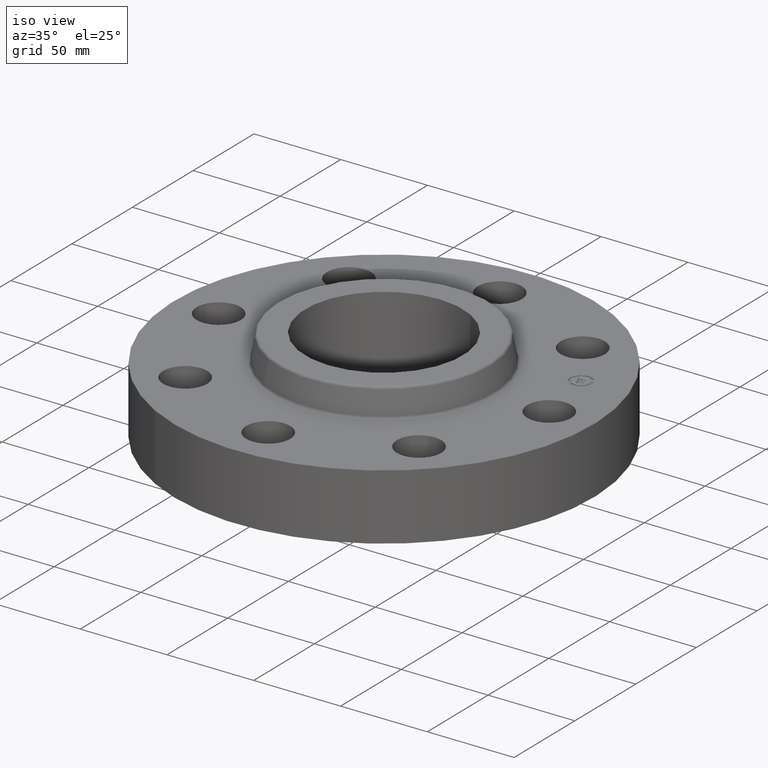
[diagram: clean part render]
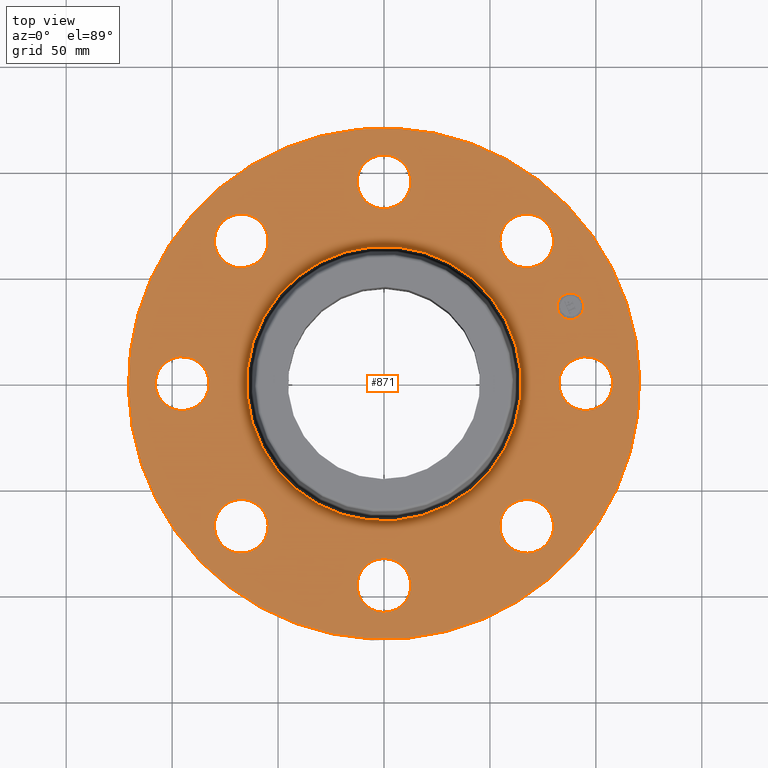
[diagram: tour spotlight — one face highlighted and labeled with its STEP entity id]
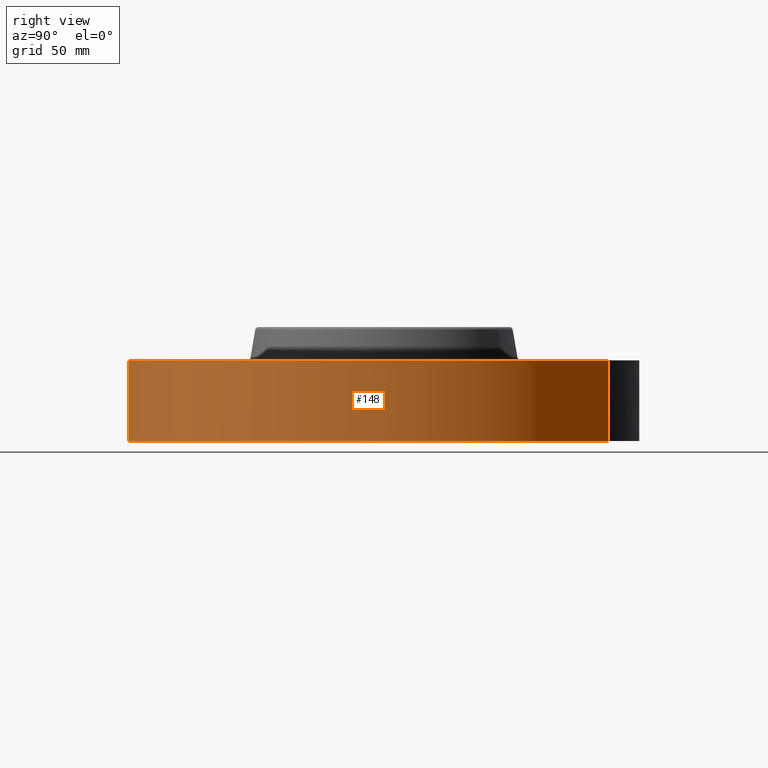
[diagram: tour spotlight — one face highlighted and labeled with its STEP entity id]
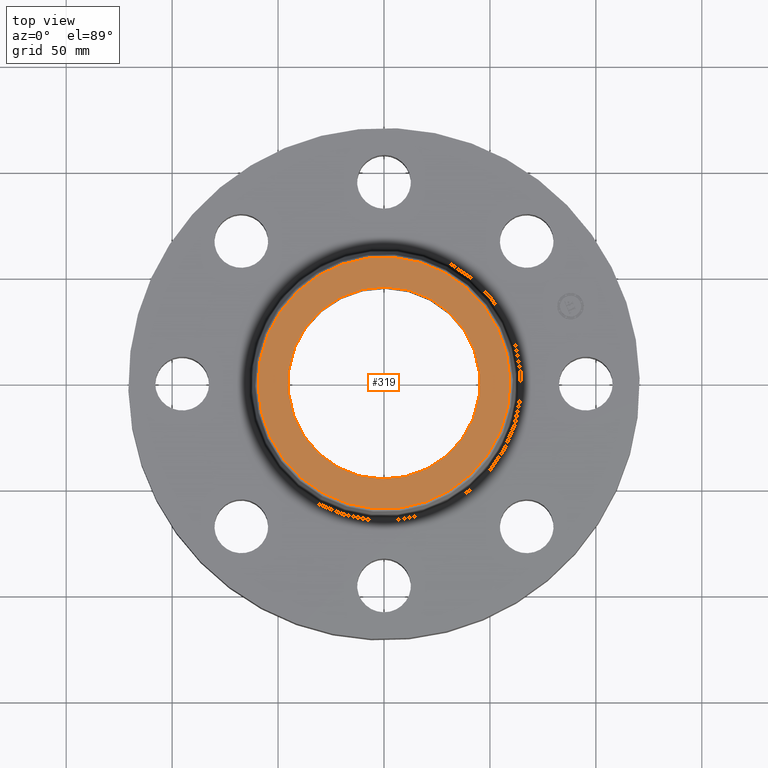
[diagram: tour spotlight — one face highlighted and labeled with its STEP entity id]
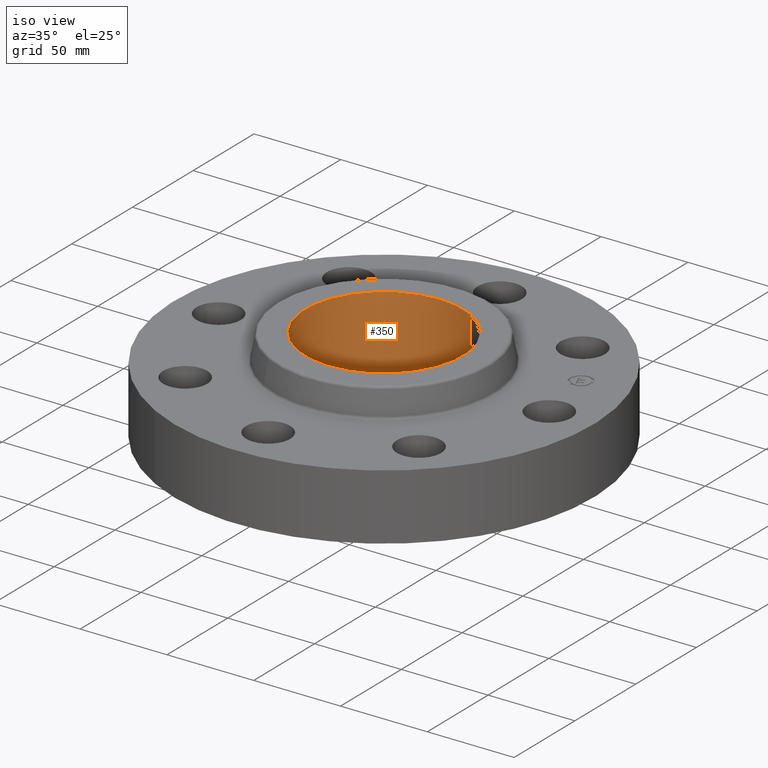
[diagram: tour spotlight — one face highlighted and labeled with its STEP entity id]
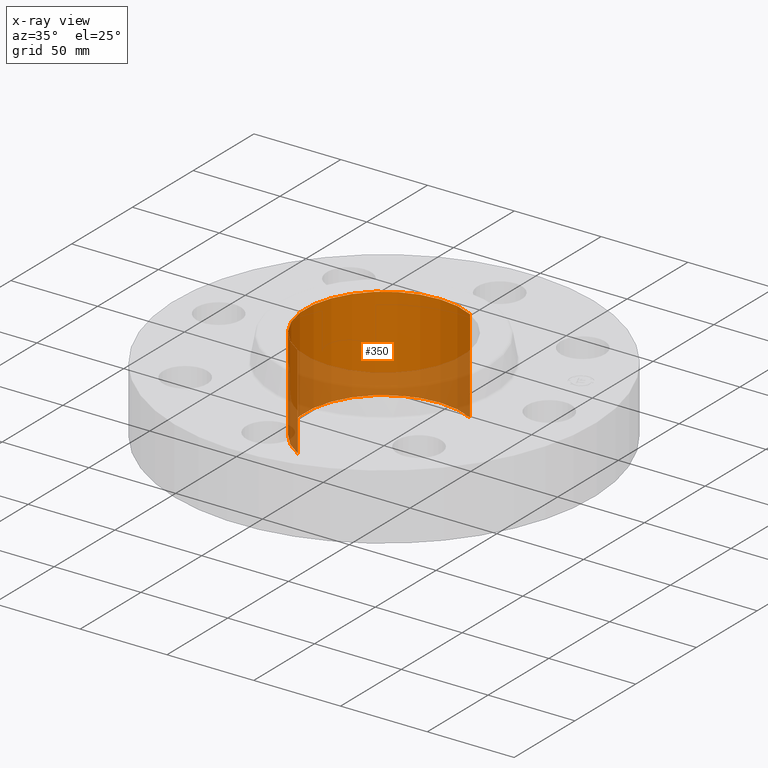
[diagram: x-ray of the same camera — body ghosted, this tour face saturated]
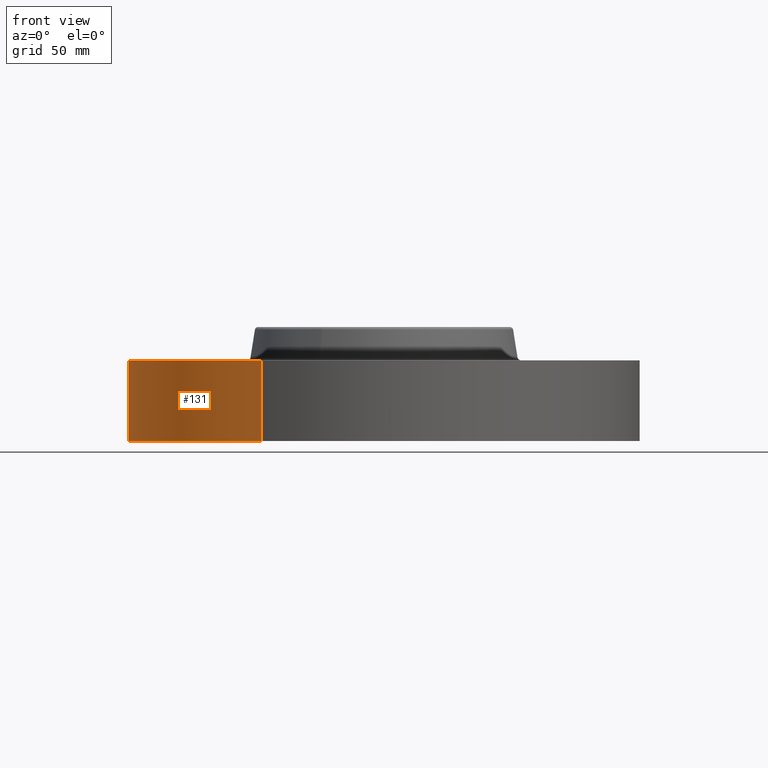
[diagram: tour spotlight — one face highlighted and labeled with its STEP entity id]
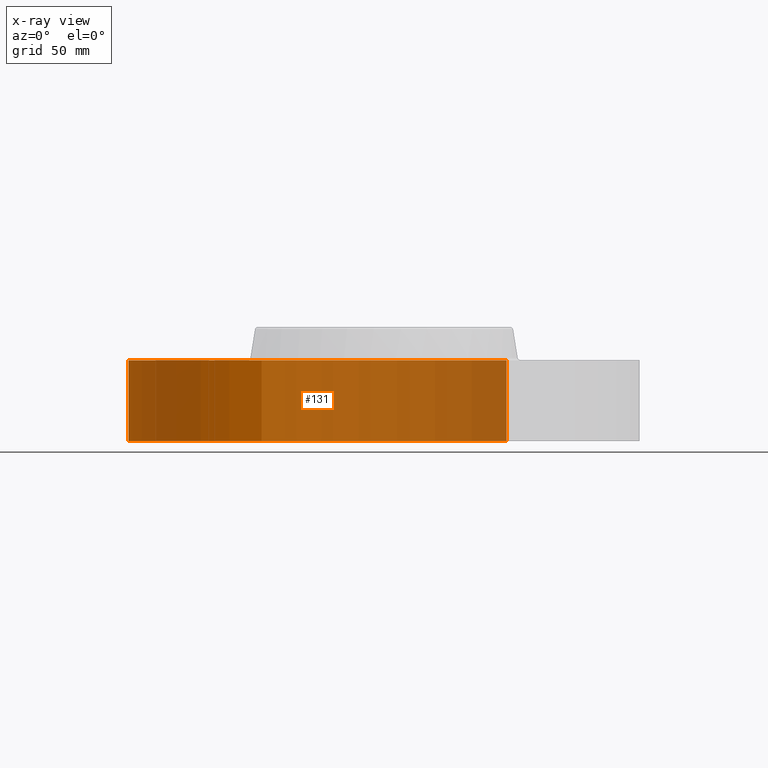
[diagram: x-ray of the same camera — body ghosted, this tour face saturated]
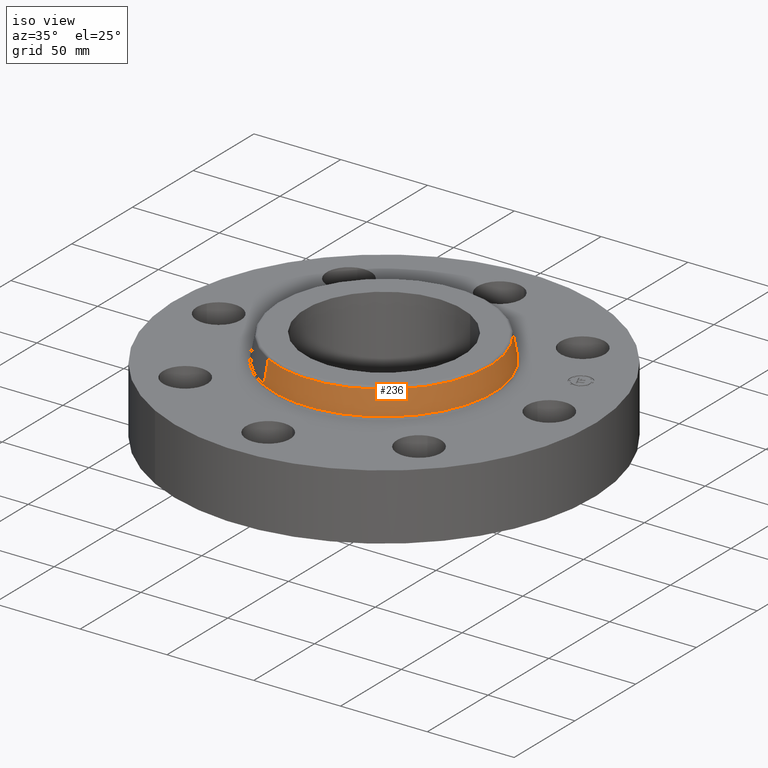
[diagram: tour spotlight — one face highlighted and labeled with its STEP entity id]
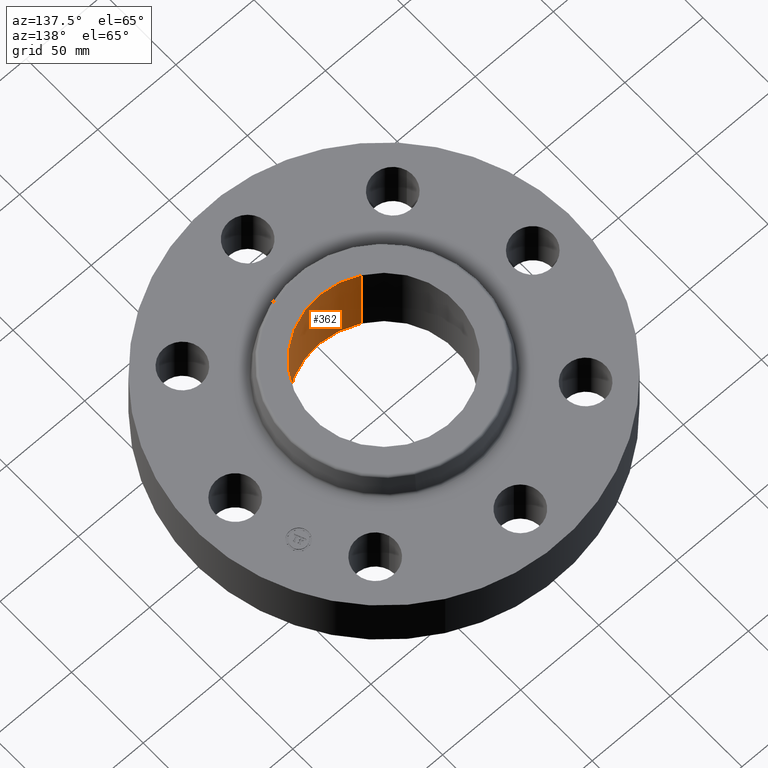
[diagram: tour spotlight — one face highlighted and labeled with its STEP entity id]
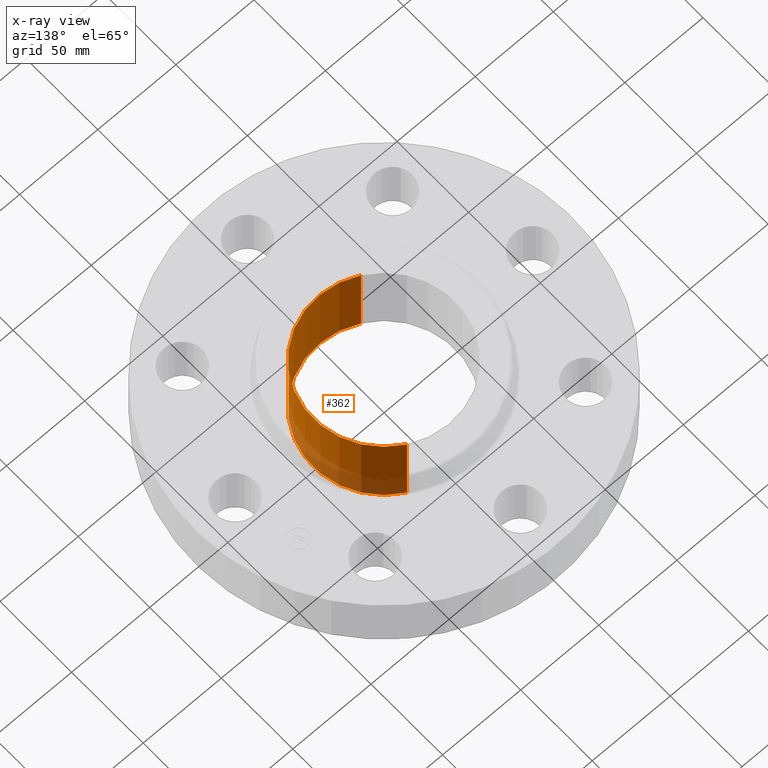
[diagram: x-ray of the same camera — body ghosted, this tour face saturated]
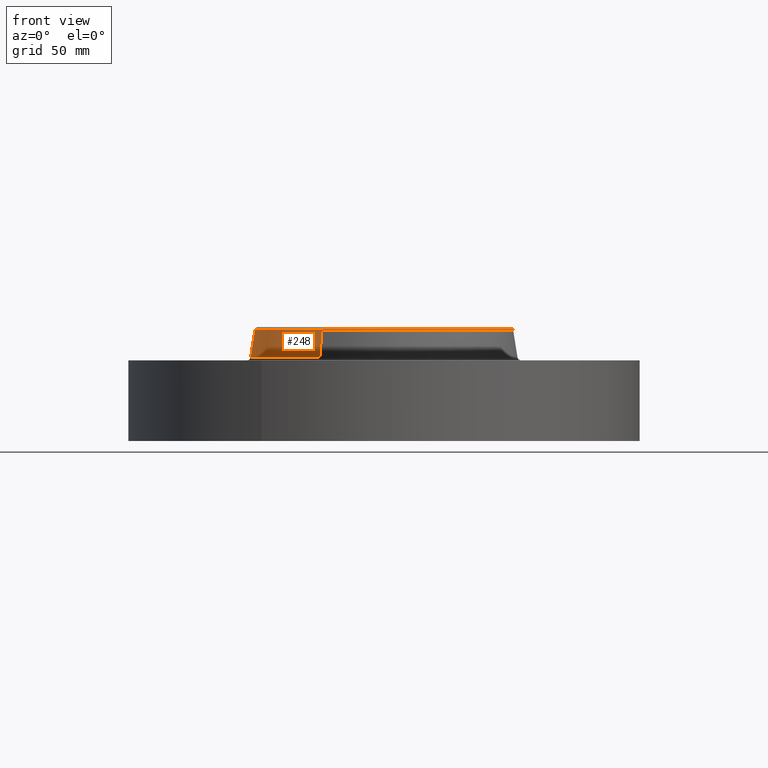
[diagram: tour spotlight — one face highlighted and labeled with its STEP entity id]
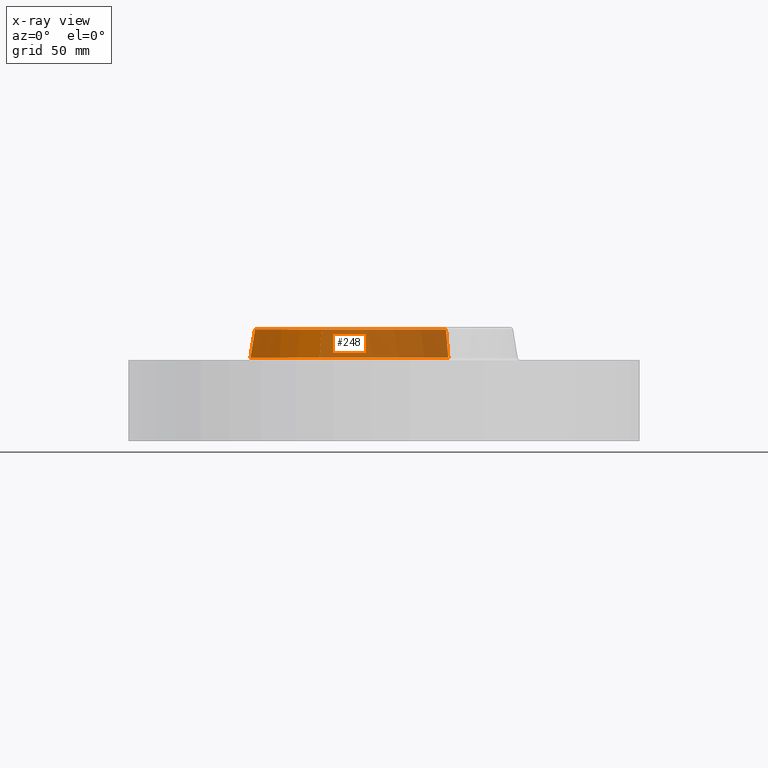
[diagram: x-ray of the same camera — body ghosted, this tour face saturated]
A machine part: a face-by-face anatomy tour. The part has 414 B-rep faces; the first image is the clean iso view, then the 8 largest visible faces are spotlighted one at a time (largest first), each with its STEP entity span.

Face 1 — top view, entity #871. In plain terms, the highlighted planar face has unit normal (0, 0, -1).
Definition (entity closure, byte-faithful):
#65=AXIS2_PLACEMENT_3D('Circle Axis2P3D',#63,#64,$) ;
#82=AXIS2_PLACEMENT_3D('Circle Axis2P3D',#80,#81,$) ;
#115=AXIS2_PLACEMENT_3D('Circle Axis2P3D',#113,#114,$) ;
#139=AXIS2_PLACEMENT_3D('Circle Axis2P3D',#137,#138,$) ;
#156=AXIS2_PLACEMENT_3D('Circle Axis2P3D',#154,#155,$) ;
#191=AXIS2_PLACEMENT_3D('Circle Axis2P3D',#189,#190,$) ;
#528=AXIS2_PLACEMENT_3D('Circle Axis2P3D',#526,#527,$) ;
#540=AXIS2_PLACEMENT_3D('Circle Axis2P3D',#538,#539,$) ;
#571=AXIS2_PLACEMENT_3D('Circle Axis2P3D',#569,#570,$) ;
#583=AXIS2_PLACEMENT_3D('Circle Axis2P3D',#581,#582,$) ;
#614=AXIS2_PLACEMENT_3D('Circle Axis2P3D',#612,#613,$) ;
#626=AXIS2_PLACEMENT_3D('Circle Axis2P3D',#624,#625,$) ;
#657=AXIS2_PLACEMENT_3D('Circle Axis2P3D',#655,#656,$) ;
#669=AXIS2_PLACEMENT_3D('Circle Axis2P3D',#667,#668,$) ;
#700=AXIS2_PLACEMENT_3D('Circle Axis2P3D',#698,#699,$) ;
#712=AXIS2_PLACEMENT_3D('Circle Axis2P3D',#710,#711,$) ;
#743=AXIS2_PLACEMENT_3D('Circle Axis2P3D',#741,#742,$) ;
#755=AXIS2_PLACEMENT_3D('Circle Axis2P3D',#753,#754,$) ;
#786=AXIS2_PLACEMENT_3D('Circle Axis2P3D',#784,#785,$) ;
#798=AXIS2_PLACEMENT_3D('Circle Axis2P3D',#796,#797,$) ;
#811=AXIS2_PLACEMENT_3D('Plane Axis2P3D',#808,#809,#810) ;
#855=AXIS2_PLACEMENT_3D('Circle Axis2P3D',#853,#854,$) ;
#864=AXIS2_PLACEMENT_3D('Circle Axis2P3D',#862,#863,$) ;
#46=CARTESIAN_POINT('Vertex',(3.31120871907,0.239712769303,1.50000000001)) ;
#60=CARTESIAN_POINT('Vertex',(4.18879128096,-0.239712769303,1.50000000001)) ;
#63=CARTESIAN_POINT('Axis2P3D Location',(3.75000000002,0.,1.50000000001)) ;
#80=CARTESIAN_POINT('Axis2P3D Location',(3.75000000002,0.,1.50000000001)) ;
#110=CARTESIAN_POINT('Vertex',(-2.27727130838,-4.168517169,1.50000000001)) ;
#113=CARTESIAN_POINT('Axis2P3D Location',(0.,0.,1.50000000001)) ;
#117=CARTESIAN_POINT('Vertex',(2.27727130838,4.168517169,1.50000000001)) ;
#137=CARTESIAN_POINT('Axis2P3D Location',(0.,0.,1.50000000001)) ;
#154=CARTESIAN_POINT('Axis2P3D Location',(0.,0.,1.50000000001)) ;
#158=CARTESIAN_POINT('Vertex',(1.22270099407,2.23813915698,1.50000000001)) ;
#160=CARTESIAN_POINT('Vertex',(-1.22270099407,-2.23813915698,1.50000000001)) ;
#189=CARTESIAN_POINT('Axis2P3D Location',(0.,0.,1.50000000001)) ;
#516=CARTESIAN_POINT('Vertex',(-2.51088066389,2.17187561447,1.50000000001)) ;
#523=CARTESIAN_POINT('Vertex',(-2.79242019503,3.13142524445,1.50000000001)) ;
#526=CARTESIAN_POINT('Axis2P3D Location',(-2.65165042946,2.65165042946,1.50000000001)) ;
#538=CARTESIAN_POINT('Axis2P3D Location',(-2.65165042946,2.65165042946,1.50000000001)) ;
#559=CARTESIAN_POINT('Vertex',(0.239712769303,-3.31120871907,1.50000000001)) ;
#566=CARTESIAN_POINT('Vertex',(-0.239712769303,-4.18879128096,1.50000000001)) ;
#569=CARTESIAN_POINT('Axis2P3D Location',(-3.29861194261E-016,-3.75000000002,1.50000000001)) ;
#581=CARTESIAN_POINT('Axis2P3D Location',(-3.29861194261E-016,-3.75000000002,1.50000000001)) ;
#602=CARTESIAN_POINT('Vertex',(-0.239712769303,3.31120871907,1.50000000001)) ;
#609=CARTESIAN_POINT('Vertex',(0.239712769303,4.18879128096,1.50000000001)) ;
#612=CARTESIAN_POINT('Axis2P3D Location',(-6.88863824523E-016,3.75000000002,1.50000000001)) ;
#624=CARTESIAN_POINT('Axis2P3D Location',(-6.88863824523E-016,3.75000000002,1.50000000001)) ;
#645=CARTESIAN_POINT('Vertex',(-2.17187561447,-2.51088066389,1.50000000001)) ;
#652=CARTESIAN_POINT('Vertex',(-3.13142524445,-2.79242019503,1.50000000001)) ;
#655=CARTESIAN_POINT('Axis2P3D Location',(-2.65165042946,-2.65165042946,1.50000000001)) ;
#667=CARTESIAN_POINT('Axis2P3D Location',(-2.65165042946,-2.65165042946,1.50000000001)) ;
#688=CARTESIAN_POINT('Vertex',(2.17187561447,2.51088066389,1.50000000001)) ;
#695=CARTESIAN_POINT('Vertex',(3.13142524445,2.79242019503,1.50000000001)) ;
#698=CARTESIAN_POINT('Axis2P3D Location',(2.65165042946,2.65165042946,1.50000000001)) ;
#710=CARTESIAN_POINT('Axis2P3D Location',(2.65165042946,2.65165042946,1.50000000001)) ;
#731=CARTESIAN_POINT('Vertex',(-3.31120871907,-0.239712769303,1.50000000001)) ;
#738=CARTESIAN_POINT('Vertex',(-4.18879128096,0.239712769303,1.50000000001)) ;
#741=CARTESIAN_POINT('Axis2P3D Location',(-3.75000000002,-4.59242549682E-016,1.50000000001)) ;
#753=CARTESIAN_POINT('Axis2P3D Location',(-3.75000000002,-4.59242549682E-016,1.50000000001)) ;
#774=CARTESIAN_POINT('Vertex',(2.51088066389,-2.17187561447,1.50000000001)) ;
#781=CARTESIAN_POINT('Vertex',(2.79242019503,-3.13142524445,1.50000000001)) ;
#784=CARTESIAN_POINT('Axis2P3D Location',(2.65165042946,-2.65165042946,1.50000000001)) ;
#796=CARTESIAN_POINT('Axis2P3D Location',(2.65165042946,-2.65165042946,1.50000000001)) ;
#808=CARTESIAN_POINT('Axis2P3D Location',(0.,4.75000000002,1.50000000001)) ;
#853=CARTESIAN_POINT('Axis2P3D Location',(3.46454824693,1.43506287137,1.50000000001)) ;
#857=CARTESIAN_POINT('Vertex',(3.36983409742,1.66372305567,1.50000000001)) ;
#859=CARTESIAN_POINT('Vertex',(3.55926239644,1.20640268708,1.50000000001)) ;
#862=CARTESIAN_POINT('Axis2P3D Location',(3.46454824693,1.43506287137,1.50000000001)) ;
#64=DIRECTION('Axis2P3D Direction',(0.,-0.,-0.0393700787402)) ;
#81=DIRECTION('Axis2P3D Direction',(0.,-0.,-0.0393700787402)) ;
#114=DIRECTION('Axis2P3D Direction',(0.,0.,-0.0393700787402)) ;
#138=DIRECTION('Axis2P3D Direction',(0.,0.,-0.0393700787402)) ;
#155=DIRECTION('Axis2P3D Direction',(0.,0.,-0.0393700787402)) ;
#190=DIRECTION('Axis2P3D Direction',(0.,0.,-0.0393700787402)) ;
#527=DIRECTION('Axis2P3D Direction',(0.,0.,-0.0393700787402)) ;
#539=DIRECTION('Axis2P3D Direction',(0.,0.,-0.0393700787402)) ;
#570=DIRECTION('Axis2P3D Direction',(0.,-0.,-0.0393700787402)) ;
#582=DIRECTION('Axis2P3D Direction',(0.,-0.,-0.0393700787402)) ;
#613=DIRECTION('Axis2P3D Direction',(0.,0.,-0.0393700787402)) ;
#625=DIRECTION('Axis2P3D Direction',(0.,0.,-0.0393700787402)) ;
#656=DIRECTION('Axis2P3D Direction',(-0.,0.,-0.0393700787402)) ;
#668=DIRECTION('Axis2P3D Direction',(-0.,0.,-0.0393700787402)) ;
#699=DIRECTION('Axis2P3D Direction',(0.,0.,-0.0393700787402)) ;
#711=DIRECTION('Axis2P3D Direction',(0.,0.,-0.0393700787402)) ;
#742=DIRECTION('Axis2P3D Direction',(-0.,0.,-0.0393700787402)) ;
#754=DIRECTION('Axis2P3D Direction',(-0.,0.,-0.0393700787402)) ;
#785=DIRECTION('Axis2P3D Direction',(0.,-0.,-0.0393700787402)) ;
#797=DIRECTION('Axis2P3D Direction',(0.,-0.,-0.0393700787402)) ;
#809=DIRECTION('Axis2P3D Direction',(0.,0.,-0.0393700787402)) ;
#810=DIRECTION('Axis2P3D XDirection',(0.0393700787402,0.,0.)) ;
#854=DIRECTION('Axis2P3D Direction',(0.,0.,-0.0393700787402)) ;
#863=DIRECTION('Axis2P3D Direction',(0.,0.,-0.0393700787402)) ;
#814=ORIENTED_EDGE('',*,*,#141,.F.) ;
#815=ORIENTED_EDGE('',*,*,#119,.F.) ;
#818=ORIENTED_EDGE('',*,*,#67,.T.) ;
#819=ORIENTED_EDGE('',*,*,#84,.T.) ;
#822=ORIENTED_EDGE('',*,*,#193,.T.) ;
#823=ORIENTED_EDGE('',*,*,#162,.T.) ;
#826=ORIENTED_EDGE('',*,*,#800,.T.) ;
#827=ORIENTED_EDGE('',*,*,#788,.T.) ;
#830=ORIENTED_EDGE('',*,*,#585,.T.) ;
#831=ORIENTED_EDGE('',*,*,#573,.T.) ;
#834=ORIENTED_EDGE('',*,*,#671,.T.) ;
#835=ORIENTED_EDGE('',*,*,#659,.T.) ;
#838=ORIENTED_EDGE('',*,*,#757,.T.) ;
#839=ORIENTED_EDGE('',*,*,#745,.T.) ;
#842=ORIENTED_EDGE('',*,*,#542,.T.) ;
#843=ORIENTED_EDGE('',*,*,#530,.T.) ;
#846=ORIENTED_EDGE('',*,*,#628,.T.) ;
#847=ORIENTED_EDGE('',*,*,#616,.T.) ;
#850=ORIENTED_EDGE('',*,*,#714,.T.) ;
#851=ORIENTED_EDGE('',*,*,#702,.T.) ;
#868=ORIENTED_EDGE('',*,*,#861,.T.) ;
#869=ORIENTED_EDGE('',*,*,#866,.T.) ;
#820=FACE_BOUND('',#817,.T.) ;
#824=FACE_BOUND('',#821,.T.) ;
#828=FACE_BOUND('',#825,.T.) ;
#832=FACE_BOUND('',#829,.T.) ;
#836=FACE_BOUND('',#833,.T.) ;
#840=FACE_BOUND('',#837,.T.) ;
#844=FACE_BOUND('',#841,.T.) ;
#848=FACE_BOUND('',#845,.T.) ;
#852=FACE_BOUND('',#849,.T.) ;
#870=FACE_BOUND('',#867,.T.) ;
#871=ADVANCED_FACE('PartBody',(#816,#820,#824,#828,#832,#836,#840,#844,#848,#852,#870),#812,.F.) ;
#66=CIRCLE('generated circle',#65,0.500000000002) ;
#83=CIRCLE('generated circle',#82,0.500000000002) ;
#116=CIRCLE('generated circle',#115,4.75000000002) ;
#140=CIRCLE('generated circle',#139,4.75000000002) ;
#157=CIRCLE('generated circle',#156,2.55034597788) ;
#192=CIRCLE('generated circle',#191,2.55034597788) ;
#529=CIRCLE('generated circle',#528,0.500000000002) ;
#541=CIRCLE('generated circle',#540,0.500000000002) ;
#572=CIRCLE('generated circle',#571,0.500000000002) ;
#584=CIRCLE('generated circle',#583,0.500000000002) ;
#615=CIRCLE('generated circle',#614,0.500000000002) ;
#627=CIRCLE('generated circle',#626,0.500000000002) ;
#658=CIRCLE('generated circle',#657,0.500000000002) ;
#670=CIRCLE('generated circle',#669,0.500000000002) ;
#701=CIRCLE('generated circle',#700,0.500000000002) ;
#713=CIRCLE('generated circle',#712,0.500000000002) ;
#744=CIRCLE('generated circle',#743,0.500000000002) ;
#756=CIRCLE('generated circle',#755,0.500000000002) ;
#787=CIRCLE('generated circle',#786,0.500000000002) ;
#799=CIRCLE('generated circle',#798,0.500000000002) ;
#856=CIRCLE('generated circle',#855,0.247500000001) ;
#865=CIRCLE('generated circle',#864,0.247500000001) ;
#67=EDGE_CURVE('',#47,#61,#66,.T.) ;
#84=EDGE_CURVE('',#61,#47,#83,.T.) ;
#119=EDGE_CURVE('',#111,#118,#116,.T.) ;
#141=EDGE_CURVE('',#118,#111,#140,.T.) ;
#162=EDGE_CURVE('',#159,#161,#157,.T.) ;
#193=EDGE_CURVE('',#161,#159,#192,.T.) ;
#530=EDGE_CURVE('',#517,#524,#529,.T.) ;
#542=EDGE_CURVE('',#524,#517,#541,.T.) ;
#573=EDGE_CURVE('',#560,#567,#572,.T.) ;
#585=EDGE_CURVE('',#567,#560,#584,.T.) ;
#616=EDGE_CURVE('',#603,#610,#615,.T.) ;
#628=EDGE_CURVE('',#610,#603,#627,.T.) ;
#659=EDGE_CURVE('',#646,#653,#658,.T.) ;
#671=EDGE_CURVE('',#653,#646,#670,.T.) ;
#702=EDGE_CURVE('',#689,#696,#701,.T.) ;
#714=EDGE_CURVE('',#696,#689,#713,.T.) ;
#745=EDGE_CURVE('',#732,#739,#744,.T.) ;
#757=EDGE_CURVE('',#739,#732,#756,.T.) ;
#788=EDGE_CURVE('',#775,#782,#787,.T.) ;
#800=EDGE_CURVE('',#782,#775,#799,.T.) ;
#861=EDGE_CURVE('',#858,#860,#856,.T.) ;
#866=EDGE_CURVE('',#860,#858,#865,.T.) ;
#813=EDGE_LOOP('',(#814,#815)) ;
#817=EDGE_LOOP('',(#818,#819)) ;
#821=EDGE_LOOP('',(#822,#823)) ;
#825=EDGE_LOOP('',(#826,#827)) ;
#829=EDGE_LOOP('',(#830,#831)) ;
#833=EDGE_LOOP('',(#834,#835)) ;
#837=EDGE_LOOP('',(#838,#839)) ;
#841=EDGE_LOOP('',(#842,#843)) ;
#845=EDGE_LOOP('',(#846,#847)) ;
#849=EDGE_LOOP('',(#850,#851)) ;
#867=EDGE_LOOP('',(#868,#869)) ;
#816=FACE_OUTER_BOUND('',#813,.T.) ;
#812=PLANE('',#811) ;
#47=VERTEX_POINT('',#46) ;
#61=VERTEX_POINT('',#60) ;
#111=VERTEX_POINT('',#110) ;
#118=VERTEX_POINT('',#117) ;
#159=VERTEX_POINT('',#158) ;
#161=VERTEX_POINT('',#160) ;
#517=VERTEX_POINT('',#516) ;
#524=VERTEX_POINT('',#523) ;
#560=VERTEX_POINT('',#559) ;
#567=VERTEX_POINT('',#566) ;
#603=VERTEX_POINT('',#602) ;
#610=VERTEX_POINT('',#609) ;
#646=VERTEX_POINT('',#645) ;
#653=VERTEX_POINT('',#652) ;
#689=VERTEX_POINT('',#688) ;
#696=VERTEX_POINT('',#695) ;
#732=VERTEX_POINT('',#731) ;
#739=VERTEX_POINT('',#738) ;
#775=VERTEX_POINT('',#774) ;
#782=VERTEX_POINT('',#781) ;
#858=VERTEX_POINT('',#857) ;
#860=VERTEX_POINT('',#859) ;

Face 2 — right view, entity #148. In plain terms, the highlighted cylindrical surface (partial cylindrical patch) has radius 120.65 mm, axis along (0, 0, -1).
Definition (entity closure, byte-faithful):
#95=AXIS2_PLACEMENT_3D('Cylinder Axis2P3D',#92,#93,#94) ;
#134=AXIS2_PLACEMENT_3D('Circle Axis2P3D',#132,#133,$) ;
#139=AXIS2_PLACEMENT_3D('Circle Axis2P3D',#137,#138,$) ;
#92=CARTESIAN_POINT('Axis2P3D Location',(0.,0.,1.06)) ;
#101=CARTESIAN_POINT('Vertex',(-2.27727130838,-4.168517169,4.19611851827E-016)) ;
#103=CARTESIAN_POINT('Vertex',(2.27727130838,4.168517169,4.19611851827E-016)) ;
#106=CARTESIAN_POINT('Line Origine',(-2.27727130838,-4.168517169,0.750000000003)) ;
#110=CARTESIAN_POINT('Vertex',(-2.27727130838,-4.168517169,1.50000000001)) ;
#117=CARTESIAN_POINT('Vertex',(2.27727130838,4.168517169,1.50000000001)) ;
#120=CARTESIAN_POINT('Line Origine',(2.27727130838,4.168517169,0.750000000003)) ;
#132=CARTESIAN_POINT('Axis2P3D Location',(0.,0.,5.59482469102E-016)) ;
#137=CARTESIAN_POINT('Axis2P3D Location',(0.,0.,1.50000000001)) ;
#93=DIRECTION('Axis2P3D Direction',(0.,0.,-0.0393700787402)) ;
#94=DIRECTION('Axis2P3D XDirection',(0.0188750212049,0.0345504945626,0.)) ;
#107=DIRECTION('Vector Direction',(0.,0.,-0.0393700787402)) ;
#121=DIRECTION('Vector Direction',(0.,0.,-0.0393700787402)) ;
#133=DIRECTION('Axis2P3D Direction',(0.,0.,-0.0393700787402)) ;
#138=DIRECTION('Axis2P3D Direction',(0.,0.,-0.0393700787402)) ;
#108=VECTOR('Line Direction',#107,0.0393700787402) ;
#122=VECTOR('Line Direction',#121,0.0393700787402) ;
#143=ORIENTED_EDGE('',*,*,#136,.F.) ;
#144=ORIENTED_EDGE('',*,*,#124,.T.) ;
#145=ORIENTED_EDGE('',*,*,#141,.T.) ;
#146=ORIENTED_EDGE('',*,*,#112,.F.) ;
#148=ADVANCED_FACE('PartBody',(#147),#96,.T.) ;
#135=CIRCLE('generated circle',#134,4.75000000002) ;
#140=CIRCLE('generated circle',#139,4.75000000002) ;
#96=CYLINDRICAL_SURFACE('generated cylinder',#95,4.75000000002) ;
#112=EDGE_CURVE('',#102,#111,#109,.F.) ;
#124=EDGE_CURVE('',#104,#118,#123,.F.) ;
#136=EDGE_CURVE('',#104,#102,#135,.T.) ;
#141=EDGE_CURVE('',#118,#111,#140,.T.) ;
#142=EDGE_LOOP('',(#143,#144,#145,#146)) ;
#147=FACE_OUTER_BOUND('',#142,.T.) ;
#109=LINE('Line',#106,#108) ;
#123=LINE('Line',#120,#122) ;
#102=VERTEX_POINT('',#101) ;
#104=VERTEX_POINT('',#103) ;
#111=VERTEX_POINT('',#110) ;
#118=VERTEX_POINT('',#117) ;

Face 3 — top view, entity #319. In plain terms, the highlighted planar face has unit normal (0, 0, -1).
Definition (entity closure, byte-faithful):
#263=AXIS2_PLACEMENT_3D('Circle Axis2P3D',#261,#262,$) ;
#282=AXIS2_PLACEMENT_3D('Circle Axis2P3D',#280,#281,$) ;
#295=AXIS2_PLACEMENT_3D('Plane Axis2P3D',#292,#293,#294) ;
#303=AXIS2_PLACEMENT_3D('Circle Axis2P3D',#301,#302,$) ;
#312=AXIS2_PLACEMENT_3D('Circle Axis2P3D',#310,#311,$) ;
#258=CARTESIAN_POINT('Vertex',(1.12201459119,2.05383393275,2.12000000001)) ;
#261=CARTESIAN_POINT('Axis2P3D Location',(0.,0.,2.12000000001)) ;
#265=CARTESIAN_POINT('Vertex',(-1.12201459119,-2.05383393275,2.12000000001)) ;
#280=CARTESIAN_POINT('Axis2P3D Location',(0.,0.,2.12000000001)) ;
#292=CARTESIAN_POINT('Axis2P3D Location',(0.,2.3403312941,2.12000000001)) ;
#301=CARTESIAN_POINT('Axis2P3D Location',(0.,0.,2.12000000001)) ;
#305=CARTESIAN_POINT('Vertex',(-0.855774586412,-1.56648487298,2.12000000001)) ;
#307=CARTESIAN_POINT('Vertex',(0.855774586412,1.56648487298,2.12000000001)) ;
#310=CARTESIAN_POINT('Axis2P3D Location',(0.,0.,2.12000000001)) ;
#262=DIRECTION('Axis2P3D Direction',(0.,0.,-0.0393700787402)) ;
#281=DIRECTION('Axis2P3D Direction',(0.,0.,-0.0393700787402)) ;
#293=DIRECTION('Axis2P3D Direction',(0.,0.,-0.0393700787402)) ;
#294=DIRECTION('Axis2P3D XDirection',(0.0393700787402,0.,0.)) ;
#302=DIRECTION('Axis2P3D Direction',(0.,0.,-0.0393700787402)) ;
#311=DIRECTION('Axis2P3D Direction',(0.,0.,-0.0393700787402)) ;
#298=ORIENTED_EDGE('',*,*,#267,.F.) ;
#299=ORIENTED_EDGE('',*,*,#284,.F.) ;
#316=ORIENTED_EDGE('',*,*,#309,.T.) ;
#317=ORIENTED_EDGE('',*,*,#314,.T.) ;
#318=FACE_BOUND('',#315,.T.) ;
#319=ADVANCED_FACE('PartBody',(#300,#318),#296,.F.) ;
#264=CIRCLE('generated circle',#263,2.3403312941) ;
#283=CIRCLE('generated circle',#282,2.3403312941) ;
#304=CIRCLE('generated circle',#303,1.78500000001) ;
#313=CIRCLE('generated circle',#312,1.78500000001) ;
#267=EDGE_CURVE('',#259,#266,#264,.T.) ;
#284=EDGE_CURVE('',#266,#259,#283,.T.) ;
#309=EDGE_CURVE('',#306,#308,#304,.T.) ;
#314=EDGE_CURVE('',#308,#306,#313,.T.) ;
#297=EDGE_LOOP('',(#298,#299)) ;
#315=EDGE_LOOP('',(#316,#317)) ;
#300=FACE_OUTER_BOUND('',#297,.T.) ;
#296=PLANE('',#295) ;
#259=VERTEX_POINT('',#258) ;
#266=VERTEX_POINT('',#265) ;
#306=VERTEX_POINT('',#305) ;
#308=VERTEX_POINT('',#307) ;

Face 4 — iso view, entity #350. An x-ray twin of the same camera follows (body ghosted, this face saturated) — the face is partly hidden behind the body. In plain terms, the highlighted cylindrical surface (partial cylindrical patch) has radius 45.339 mm, axis along (0, 0, -1).
Definition (entity closure, byte-faithful):
#303=AXIS2_PLACEMENT_3D('Circle Axis2P3D',#301,#302,$) ;
#323=AXIS2_PLACEMENT_3D('Cylinder Axis2P3D',#320,#321,#322) ;
#334=AXIS2_PLACEMENT_3D('Circle Axis2P3D',#332,#333,$) ;
#301=CARTESIAN_POINT('Axis2P3D Location',(0.,0.,2.12000000001)) ;
#305=CARTESIAN_POINT('Vertex',(-0.855774586412,-1.56648487298,2.12000000001)) ;
#307=CARTESIAN_POINT('Vertex',(0.855774586412,1.56648487298,2.12000000001)) ;
#320=CARTESIAN_POINT('Axis2P3D Location',(0.,0.,1.06)) ;
#325=CARTESIAN_POINT('Line Origine',(-0.855774586412,-1.56648487298,1.06)) ;
#329=CARTESIAN_POINT('Vertex',(-0.855774586412,-1.56648487298,-8.81184888836E-015)) ;
#332=CARTESIAN_POINT('Axis2P3D Location',(0.,0.,-8.95171950564E-015)) ;
#336=CARTESIAN_POINT('Vertex',(0.855774586412,1.56648487298,-8.81184888836E-015)) ;
#339=CARTESIAN_POINT('Line Origine',(0.855774586412,1.56648487298,1.06)) ;
#302=DIRECTION('Axis2P3D Direction',(0.,0.,-0.0393700787402)) ;
#321=DIRECTION('Axis2P3D Direction',(0.,0.,-0.0393700787402)) ;
#322=DIRECTION('Axis2P3D XDirection',(0.0188750212049,0.0345504945626,0.)) ;
#326=DIRECTION('Vector Direction',(0.,0.,-0.0393700787402)) ;
#333=DIRECTION('Axis2P3D Direction',(0.,0.,-0.0393700787402)) ;
#340=DIRECTION('Vector Direction',(0.,0.,-0.0393700787402)) ;
#327=VECTOR('Line Direction',#326,0.0393700787402) ;
#341=VECTOR('Line Direction',#340,0.0393700787402) ;
#345=ORIENTED_EDGE('',*,*,#309,.F.) ;
#346=ORIENTED_EDGE('',*,*,#331,.T.) ;
#347=ORIENTED_EDGE('',*,*,#338,.T.) ;
#348=ORIENTED_EDGE('',*,*,#343,.F.) ;
#350=ADVANCED_FACE('PartBody',(#349),#324,.F.) ;
#304=CIRCLE('generated circle',#303,1.78500000001) ;
#335=CIRCLE('generated circle',#334,1.78500000001) ;
#324=CYLINDRICAL_SURFACE('generated cylinder',#323,1.78500000001) ;
#309=EDGE_CURVE('',#306,#308,#304,.T.) ;
#331=EDGE_CURVE('',#306,#330,#328,.T.) ;
#338=EDGE_CURVE('',#330,#337,#335,.T.) ;
#343=EDGE_CURVE('',#308,#337,#342,.T.) ;
#344=EDGE_LOOP('',(#345,#346,#347,#348)) ;
#349=FACE_OUTER_BOUND('',#344,.T.) ;
#328=LINE('Line',#325,#327) ;
#342=LINE('Line',#339,#341) ;
#306=VERTEX_POINT('',#305) ;
#308=VERTEX_POINT('',#307) ;
#330=VERTEX_POINT('',#329) ;
#337=VERTEX_POINT('',#336) ;

Face 5 — front view, entity #131. An x-ray twin of the same camera follows (body ghosted, this face saturated) — the face is partly hidden behind the body. In plain terms, the highlighted cylindrical surface (partial cylindrical patch) has radius 120.65 mm, axis along (0, 0, -1).
Definition (entity closure, byte-faithful):
#95=AXIS2_PLACEMENT_3D('Cylinder Axis2P3D',#92,#93,#94) ;
#99=AXIS2_PLACEMENT_3D('Circle Axis2P3D',#97,#98,$) ;
#115=AXIS2_PLACEMENT_3D('Circle Axis2P3D',#113,#114,$) ;
#92=CARTESIAN_POINT('Axis2P3D Location',(0.,0.,1.06)) ;
#97=CARTESIAN_POINT('Axis2P3D Location',(0.,0.,5.59482469102E-016)) ;
#101=CARTESIAN_POINT('Vertex',(-2.27727130838,-4.168517169,4.19611851827E-016)) ;
#103=CARTESIAN_POINT('Vertex',(2.27727130838,4.168517169,4.19611851827E-016)) ;
#106=CARTESIAN_POINT('Line Origine',(-2.27727130838,-4.168517169,0.750000000003)) ;
#110=CARTESIAN_POINT('Vertex',(-2.27727130838,-4.168517169,1.50000000001)) ;
#113=CARTESIAN_POINT('Axis2P3D Location',(0.,0.,1.50000000001)) ;
#117=CARTESIAN_POINT('Vertex',(2.27727130838,4.168517169,1.50000000001)) ;
#120=CARTESIAN_POINT('Line Origine',(2.27727130838,4.168517169,0.750000000003)) ;
#93=DIRECTION('Axis2P3D Direction',(0.,0.,-0.0393700787402)) ;
#94=DIRECTION('Axis2P3D XDirection',(0.0188750212049,0.0345504945626,0.)) ;
#98=DIRECTION('Axis2P3D Direction',(0.,0.,-0.0393700787402)) ;
#107=DIRECTION('Vector Direction',(0.,0.,-0.0393700787402)) ;
#114=DIRECTION('Axis2P3D Direction',(0.,0.,-0.0393700787402)) ;
#121=DIRECTION('Vector Direction',(0.,0.,-0.0393700787402)) ;
#108=VECTOR('Line Direction',#107,0.0393700787402) ;
#122=VECTOR('Line Direction',#121,0.0393700787402) ;
#126=ORIENTED_EDGE('',*,*,#105,.F.) ;
#127=ORIENTED_EDGE('',*,*,#112,.T.) ;
#128=ORIENTED_EDGE('',*,*,#119,.T.) ;
#129=ORIENTED_EDGE('',*,*,#124,.F.) ;
#131=ADVANCED_FACE('PartBody',(#130),#96,.T.) ;
#100=CIRCLE('generated circle',#99,4.75000000002) ;
#116=CIRCLE('generated circle',#115,4.75000000002) ;
#96=CYLINDRICAL_SURFACE('generated cylinder',#95,4.75000000002) ;
#105=EDGE_CURVE('',#102,#104,#100,.T.) ;
#112=EDGE_CURVE('',#102,#111,#109,.F.) ;
#119=EDGE_CURVE('',#111,#118,#116,.T.) ;
#124=EDGE_CURVE('',#104,#118,#123,.F.) ;
#125=EDGE_LOOP('',(#126,#127,#128,#129)) ;
#130=FACE_OUTER_BOUND('',#125,.T.) ;
#109=LINE('Line',#106,#108) ;
#123=LINE('Line',#120,#122) ;
#102=VERTEX_POINT('',#101) ;
#104=VERTEX_POINT('',#103) ;
#111=VERTEX_POINT('',#110) ;
#118=VERTEX_POINT('',#117) ;

Face 6 — iso view, entity #236. In plain terms, the highlighted conical surface has half-angle 10 deg.
Definition (entity closure, byte-faithful):
#172=AXIS2_PLACEMENT_3D('Circle Axis2P3D',#170,#171,$) ;
#209=AXIS2_PLACEMENT_3D('Cone Axis2P3D',#206,#207,#208) ;
#220=AXIS2_PLACEMENT_3D('Circle Axis2P3D',#218,#219,$) ;
#167=CARTESIAN_POINT('Vertex',(1.19437247483,2.18628415032,1.54958110935)) ;
#170=CARTESIAN_POINT('Axis2P3D Location',(0.,0.,1.54958110935)) ;
#174=CARTESIAN_POINT('Vertex',(-1.19437247483,-2.18628415032,1.54958110935)) ;
#206=CARTESIAN_POINT('Axis2P3D Location',(0.,0.,2.07041889067)) ;
#211=CARTESIAN_POINT('Line Origine',(1.17235779263,2.14598654486,1.81000000001)) ;
#215=CARTESIAN_POINT('Vertex',(1.15034311043,2.1056889394,2.07041889067)) ;
#218=CARTESIAN_POINT('Axis2P3D Location',(0.,0.,2.07041889067)) ;
#222=CARTESIAN_POINT('Vertex',(-1.15034311043,-2.1056889394,2.07041889067)) ;
#225=CARTESIAN_POINT('Line Origine',(-1.17235779263,-2.14598654486,1.81000000001)) ;
#171=DIRECTION('Axis2P3D Direction',(0.,0.,-0.0393700787402)) ;
#207=DIRECTION('Axis2P3D Direction',(0.,0.,-0.0393700787402)) ;
#208=DIRECTION('Axis2P3D XDirection',(-0.0188750212049,-0.0345504945626,0.)) ;
#212=DIRECTION('Vector Direction',(0.00327761303565,0.00599963041829,-0.03877195878)) ;
#219=DIRECTION('Axis2P3D Direction',(0.,0.,-0.0393700787402)) ;
#226=DIRECTION('Vector Direction',(-0.00327761303565,-0.00599963041829,-0.03877195878)) ;
#213=VECTOR('Line Direction',#212,0.0393700787402) ;
#227=VECTOR('Line Direction',#226,0.0393700787402) ;
#231=ORIENTED_EDGE('',*,*,#176,.F.) ;
#232=ORIENTED_EDGE('',*,*,#217,.T.) ;
#233=ORIENTED_EDGE('',*,*,#224,.T.) ;
#234=ORIENTED_EDGE('',*,*,#229,.F.) ;
#236=ADVANCED_FACE('PartBody',(#235),#210,.T.) ;
#173=CIRCLE('generated circle',#172,2.4912575127) ;
#221=CIRCLE('generated circle',#220,2.39941975928) ;
#210=CONICAL_SURFACE('Cone',#209,2.39941975928,0.174532925199) ;
#176=EDGE_CURVE('',#168,#175,#173,.T.) ;
#217=EDGE_CURVE('',#168,#216,#214,.F.) ;
#224=EDGE_CURVE('',#216,#223,#221,.T.) ;
#229=EDGE_CURVE('',#175,#223,#228,.F.) ;
#230=EDGE_LOOP('',(#231,#232,#233,#234)) ;
#235=FACE_OUTER_BOUND('',#230,.T.) ;
#214=LINE('Line',#211,#213) ;
#228=LINE('Line',#225,#227) ;
#168=VERTEX_POINT('',#167) ;
#175=VERTEX_POINT('',#174) ;
#216=VERTEX_POINT('',#215) ;
#223=VERTEX_POINT('',#222) ;

Face 7 — auxiliary view, entity #362. An x-ray twin of the same camera follows (body ghosted, this face saturated) — the face is partly hidden behind the body. In plain terms, the highlighted cylindrical surface (partial cylindrical patch) has radius 45.339 mm, axis along (0, 0, -1).
Definition (entity closure, byte-faithful):
#312=AXIS2_PLACEMENT_3D('Circle Axis2P3D',#310,#311,$) ;
#323=AXIS2_PLACEMENT_3D('Cylinder Axis2P3D',#320,#321,#322) ;
#353=AXIS2_PLACEMENT_3D('Circle Axis2P3D',#351,#352,$) ;
#305=CARTESIAN_POINT('Vertex',(-0.855774586412,-1.56648487298,2.12000000001)) ;
#307=CARTESIAN_POINT('Vertex',(0.855774586412,1.56648487298,2.12000000001)) ;
#310=CARTESIAN_POINT('Axis2P3D Location',(0.,0.,2.12000000001)) ;
#320=CARTESIAN_POINT('Axis2P3D Location',(0.,0.,1.06)) ;
#325=CARTESIAN_POINT('Line Origine',(-0.855774586412,-1.56648487298,1.06)) ;
#329=CARTESIAN_POINT('Vertex',(-0.855774586412,-1.56648487298,-8.81184888836E-015)) ;
#336=CARTESIAN_POINT('Vertex',(0.855774586412,1.56648487298,-8.81184888836E-015)) ;
#339=CARTESIAN_POINT('Line Origine',(0.855774586412,1.56648487298,1.06)) ;
#351=CARTESIAN_POINT('Axis2P3D Location',(0.,0.,-8.95171950564E-015)) ;
#311=DIRECTION('Axis2P3D Direction',(0.,0.,-0.0393700787402)) ;
#321=DIRECTION('Axis2P3D Direction',(0.,0.,-0.0393700787402)) ;
#322=DIRECTION('Axis2P3D XDirection',(0.0188750212049,0.0345504945626,0.)) ;
#326=DIRECTION('Vector Direction',(0.,0.,-0.0393700787402)) ;
#340=DIRECTION('Vector Direction',(0.,0.,-0.0393700787402)) ;
#352=DIRECTION('Axis2P3D Direction',(0.,0.,-0.0393700787402)) ;
#327=VECTOR('Line Direction',#326,0.0393700787402) ;
#341=VECTOR('Line Direction',#340,0.0393700787402) ;
#357=ORIENTED_EDGE('',*,*,#314,.F.) ;
#358=ORIENTED_EDGE('',*,*,#343,.T.) ;
#359=ORIENTED_EDGE('',*,*,#355,.T.) ;
#360=ORIENTED_EDGE('',*,*,#331,.F.) ;
#362=ADVANCED_FACE('PartBody',(#361),#324,.F.) ;
#313=CIRCLE('generated circle',#312,1.78500000001) ;
#354=CIRCLE('generated circle',#353,1.78500000001) ;
#324=CYLINDRICAL_SURFACE('generated cylinder',#323,1.78500000001) ;
#314=EDGE_CURVE('',#308,#306,#313,.T.) ;
#331=EDGE_CURVE('',#306,#330,#328,.T.) ;
#343=EDGE_CURVE('',#308,#337,#342,.T.) ;
#355=EDGE_CURVE('',#337,#330,#354,.T.) ;
#356=EDGE_LOOP('',(#357,#358,#359,#360)) ;
#361=FACE_OUTER_BOUND('',#356,.T.) ;
#328=LINE('Line',#325,#327) ;
#342=LINE('Line',#339,#341) ;
#306=VERTEX_POINT('',#305) ;
#308=VERTEX_POINT('',#307) ;
#330=VERTEX_POINT('',#329) ;
#337=VERTEX_POINT('',#336) ;

Face 8 — front view, entity #248. An x-ray twin of the same camera follows (body ghosted, this face saturated) — the face is partly hidden behind the body. In plain terms, the highlighted conical surface has half-angle 10 deg.
Definition (entity closure, byte-faithful):
#196=AXIS2_PLACEMENT_3D('Circle Axis2P3D',#194,#195,$) ;
#209=AXIS2_PLACEMENT_3D('Cone Axis2P3D',#206,#207,#208) ;
#239=AXIS2_PLACEMENT_3D('Circle Axis2P3D',#237,#238,$) ;
#167=CARTESIAN_POINT('Vertex',(1.19437247483,2.18628415032,1.54958110935)) ;
#174=CARTESIAN_POINT('Vertex',(-1.19437247483,-2.18628415032,1.54958110935)) ;
#194=CARTESIAN_POINT('Axis2P3D Location',(0.,0.,1.54958110935)) ;
#206=CARTESIAN_POINT('Axis2P3D Location',(0.,0.,2.07041889067)) ;
#211=CARTESIAN_POINT('Line Origine',(1.17235779263,2.14598654486,1.81000000001)) ;
#215=CARTESIAN_POINT('Vertex',(1.15034311043,2.1056889394,2.07041889067)) ;
#222=CARTESIAN_POINT('Vertex',(-1.15034311043,-2.1056889394,2.07041889067)) ;
#225=CARTESIAN_POINT('Line Origine',(-1.17235779263,-2.14598654486,1.81000000001)) ;
#237=CARTESIAN_POINT('Axis2P3D Location',(0.,0.,2.07041889067)) ;
#195=DIRECTION('Axis2P3D Direction',(0.,0.,-0.0393700787402)) ;
#207=DIRECTION('Axis2P3D Direction',(0.,0.,-0.0393700787402)) ;
#208=DIRECTION('Axis2P3D XDirection',(-0.0188750212049,-0.0345504945626,0.)) ;
#212=DIRECTION('Vector Direction',(0.00327761303565,0.00599963041829,-0.03877195878)) ;
#226=DIRECTION('Vector Direction',(-0.00327761303565,-0.00599963041829,-0.03877195878)) ;
#238=DIRECTION('Axis2P3D Direction',(0.,0.,-0.0393700787402)) ;
#213=VECTOR('Line Direction',#212,0.0393700787402) ;
#227=VECTOR('Line Direction',#226,0.0393700787402) ;
#243=ORIENTED_EDGE('',*,*,#198,.F.) ;
#244=ORIENTED_EDGE('',*,*,#229,.T.) ;
#245=ORIENTED_EDGE('',*,*,#241,.T.) ;
#246=ORIENTED_EDGE('',*,*,#217,.F.) ;
#248=ADVANCED_FACE('PartBody',(#247),#210,.T.) ;
#197=CIRCLE('generated circle',#196,2.4912575127) ;
#240=CIRCLE('generated circle',#239,2.39941975928) ;
#210=CONICAL_SURFACE('Cone',#209,2.39941975928,0.174532925199) ;
#198=EDGE_CURVE('',#175,#168,#197,.T.) ;
#217=EDGE_CURVE('',#168,#216,#214,.F.) ;
#229=EDGE_CURVE('',#175,#223,#228,.F.) ;
#241=EDGE_CURVE('',#223,#216,#240,.T.) ;
#242=EDGE_LOOP('',(#243,#244,#245,#246)) ;
#247=FACE_OUTER_BOUND('',#242,.T.) ;
#214=LINE('Line',#211,#213) ;
#228=LINE('Line',#225,#227) ;
#168=VERTEX_POINT('',#167) ;
#175=VERTEX_POINT('',#174) ;
#216=VERTEX_POINT('',#215) ;
#223=VERTEX_POINT('',#222) ;